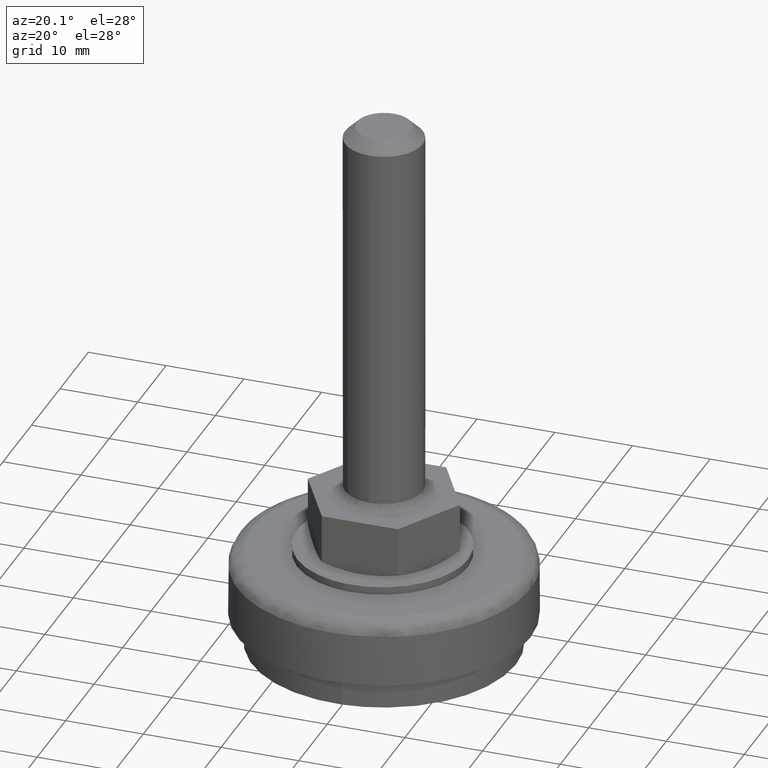
[diagram: clean part render]
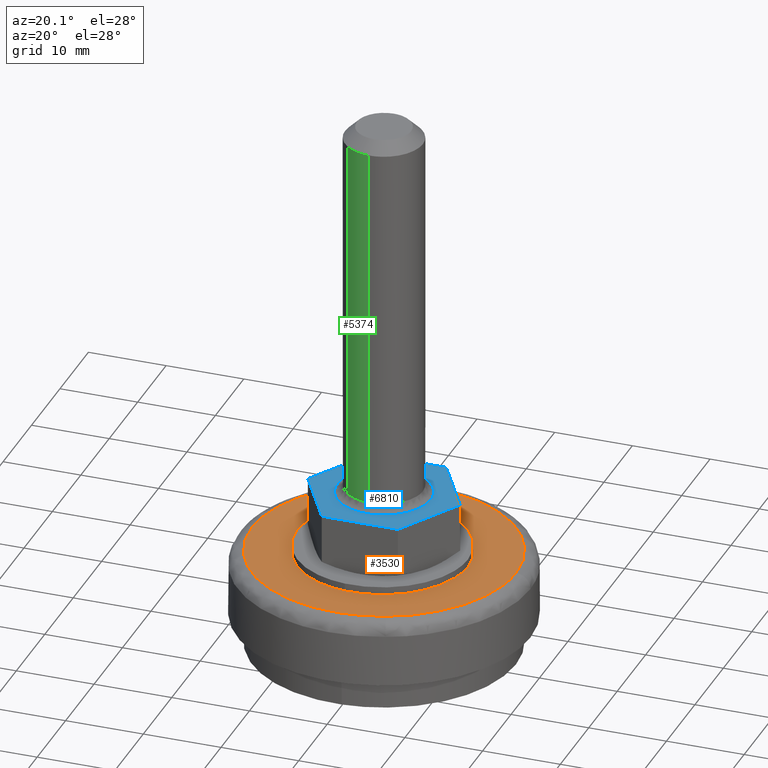
[diagram: same view with three faces highlighted in distinct colors, each labeled with its STEP entity id]
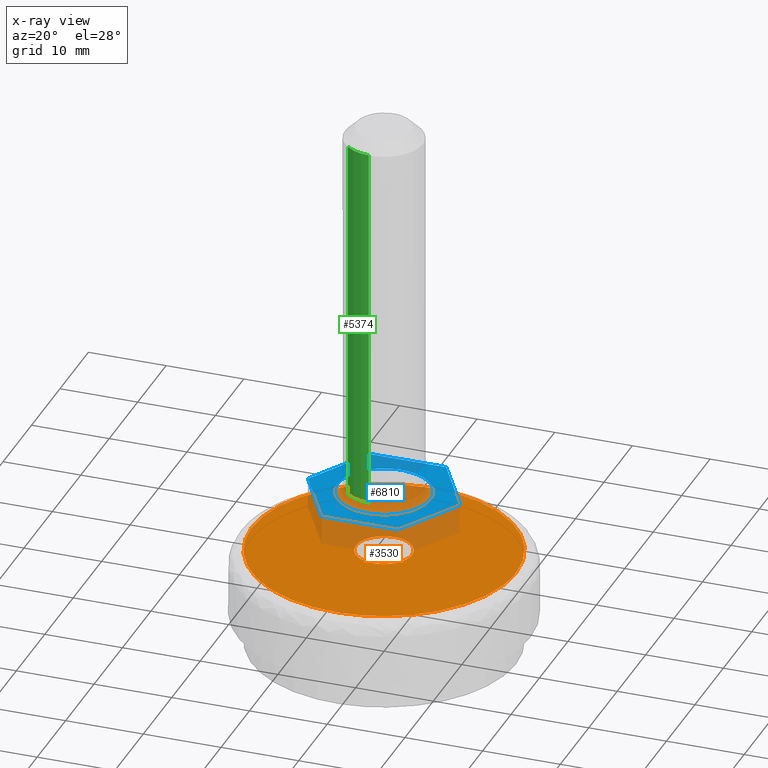
[diagram: x-ray of the same camera — body ghosted, the three highlighted faces saturated]
A machine part, auxiliary view with three faces highlighted in distinct colors.
The next image is the same camera in x-ray (body ghosted, the three faces saturated) — at least one of them is partly hidden behind the body in this view.
Their STEP definitions:

[orange] entity #3530 — the highlighted face is a freeform B-spline surface patch.
#2662=CARTESIAN_POINT('',(-0.424923244880155,-3.574834294895431,12.500000000000000));
#2663=VERTEX_POINT('',#2662);
#2669=CARTESIAN_POINT('',(3.600000000000000,0.0,12.500000000000000));
#2670=VERTEX_POINT('',#2669);
#2671=CARTESIAN_POINT('',(-0.424923244880155,-3.574834294895431,12.500000000000005));
#2672=CARTESIAN_POINT('',(-0.213206830863926,-3.600000000000000,12.499999999999996));
#2673=CARTESIAN_POINT('',(0.0,-3.600000000000000,12.500000000000000));
#2674=CARTESIAN_POINT('',(3.600000000000000,-3.600000000000000,12.499999999999998));
#2675=CARTESIAN_POINT('',(3.600000000000000,0.0,12.500000000000000));
#2683=(BOUNDED_CURVE()B_SPLINE_CURVE(2,(#2671,#2672,#2673,#2674,#2675),.UNSPECIFIED.,.F.,.U.)B_SPLINE_CURVE_WITH_KNOTS((3,2,3),(0.229562473504693,0.250000000000000,0.500000000000000),.UNSPECIFIED.)CURVE()GEOMETRIC_REPRESENTATION_ITEM()RATIONAL_B_SPLINE_CURVE((0.956026754166420,0.976055948320817,1.0,0.707106781186547,1.0))REPRESENTATION_ITEM(''));
#2684=EDGE_CURVE('',#2663,#2670,#2683,.T.);
#2686=CARTESIAN_POINT('',(0.219769012497546,3.593285624760839,12.500000000000000));
#2687=VERTEX_POINT('',#2686);
#2688=CARTESIAN_POINT('',(3.600000000000000,0.0,12.500000000000000));
#2689=CARTESIAN_POINT('',(3.600000000000000,3.386547251111519,12.500000000000000));
#2690=CARTESIAN_POINT('',(0.219769012497546,3.593285624760840,12.499999999999998));
#2698=(BOUNDED_CURVE()B_SPLINE_CURVE(2,(#2688,#2689,#2690),.UNSPECIFIED.,.F.,.U.)B_SPLINE_CURVE_WITH_KNOTS((3,3),(0.500000000000000,0.739333237383947),.UNSPECIFIED.)CURVE()GEOMETRIC_REPRESENTATION_ITEM()RATIONAL_B_SPLINE_CURVE((1.0,0.719603670934287,0.976072631355547))REPRESENTATION_ITEM(''));
#2699=EDGE_CURVE('',#2670,#2687,#2698,.T.);
#2773=CARTESIAN_POINT('',(-3.600000000000000,0.0,12.500000000000000));
#2774=VERTEX_POINT('',#2773);
#2775=CARTESIAN_POINT('',(0.219769012497546,3.593285624760840,12.499999999999998));
#2776=CARTESIAN_POINT('',(0.109987074928360,3.600000000000000,12.500000000000000));
#2777=CARTESIAN_POINT('',(0.0,3.600000000000000,12.500000000000000));
#2778=CARTESIAN_POINT('',(-3.600000000000000,3.600000000000000,12.499999999999998));
#2779=CARTESIAN_POINT('',(-3.600000000000000,0.0,12.500000000000000));
#2787=(BOUNDED_CURVE()B_SPLINE_CURVE(2,(#2775,#2776,#2777,#2778,#2779),.UNSPECIFIED.,.F.,.U.)B_SPLINE_CURVE_WITH_KNOTS((3,2,3),(0.739333237383947,0.750000000000000,1.0),.UNSPECIFIED.)CURVE()GEOMETRIC_REPRESENTATION_ITEM()RATIONAL_B_SPLINE_CURVE((0.976072631355547,0.987503110252261,1.0,0.707106781186547,1.0))REPRESENTATION_ITEM(''));
#2788=EDGE_CURVE('',#2687,#2774,#2787,.T.);
#2790=CARTESIAN_POINT('',(-3.600000000000000,0.0,12.500000000000000));
#2791=CARTESIAN_POINT('',(-3.600000000000000,-3.197428293216273,12.500000000000000));
#2792=CARTESIAN_POINT('',(-0.424923244880155,-3.574834294895431,12.500000000000002));
#2800=(BOUNDED_CURVE()B_SPLINE_CURVE(2,(#2790,#2791,#2792),.UNSPECIFIED.,.F.,.U.)B_SPLINE_CURVE_WITH_KNOTS((3,3),(0.0,0.229562473504693),.UNSPECIFIED.)CURVE()GEOMETRIC_REPRESENTATION_ITEM()RATIONAL_B_SPLINE_CURVE((1.0,0.731050832865730,0.956026754166421))REPRESENTATION_ITEM(''));
#2801=EDGE_CURVE('',#2774,#2663,#2800,.T.);
#3392=CARTESIAN_POINT('',(-17.0,0.0,12.500000000000000));
#3393=VERTEX_POINT('',#3392);
#3394=CARTESIAN_POINT('',(6.006133434828824,-15.903658739561820,12.500000000000000));
#3395=VERTEX_POINT('',#3394);
#3396=CARTESIAN_POINT('',(-17.0,0.0,12.500000000000000));
#3397=CARTESIAN_POINT('',(-17.000000000000004,-17.000000000000004,12.500000000000000));
#3398=CARTESIAN_POINT('',(0.0,-17.0,12.500000000000000));
#3399=CARTESIAN_POINT('',(3.103128110762968,-17.0,12.499999999999996));
#3400=CARTESIAN_POINT('',(6.006133434828824,-15.903658739561822,12.500000000000005));
#3408=(BOUNDED_CURVE()B_SPLINE_CURVE(2,(#3396,#3397,#3398,#3399,#3400),.UNSPECIFIED.,.F.,.U.)B_SPLINE_CURVE_WITH_KNOTS((3,2,3),(0.0,0.250000000000000,0.310000000002734),.UNSPECIFIED.)CURVE()GEOMETRIC_REPRESENTATION_ITEM()RATIONAL_B_SPLINE_CURVE((1.0,0.707106781186548,1.0,0.929705627481568,0.893152553773521))REPRESENTATION_ITEM(''));
#3409=EDGE_CURVE('',#3393,#3395,#3408,.T.);
#3411=CARTESIAN_POINT('',(17.000000000051909,8.852452E-016,12.500000000000000));
#3412=VERTEX_POINT('',#3411);
#3413=CARTESIAN_POINT('',(17.000000000051909,8.852452E-016,12.500000000000000));
#3414=CARTESIAN_POINT('',(17.000000000000004,17.000000000000004,12.500000000000000));
#3415=CARTESIAN_POINT('',(0.0,17.0,12.500000000000000));
#3416=CARTESIAN_POINT('',(-17.000000000000004,17.000000000000004,12.500000000000000));
#3417=CARTESIAN_POINT('',(-17.0,0.0,12.500000000000000));
#3425=(BOUNDED_CURVE()B_SPLINE_CURVE(2,(#3413,#3414,#3415,#3416,#3417),.UNSPECIFIED.,.F.,.U.)B_SPLINE_CURVE_WITH_KNOTS((3,2,3),(0.500000000000000,0.750000000000000,1.0),.UNSPECIFIED.)CURVE()GEOMETRIC_REPRESENTATION_ITEM()RATIONAL_B_SPLINE_CURVE((1.0,0.707106781186548,1.0,0.707106781186548,1.0))REPRESENTATION_ITEM(''));
#3426=EDGE_CURVE('',#3412,#3393,#3425,.T.);
#3478=CARTESIAN_POINT('',(6.006133434828824,-15.903658739561822,12.500000000000005));
#3479=CARTESIAN_POINT('',(17.0,-11.751744346221713,12.499999999999998));
#3480=CARTESIAN_POINT('',(17.000000000051909,8.852452E-016,12.500000000000000));
#3488=(BOUNDED_CURVE()B_SPLINE_CURVE(2,(#3478,#3479,#3480),.UNSPECIFIED.,.F.,.U.)B_SPLINE_CURVE_WITH_KNOTS((3,3),(0.310000000002734,0.500000000000000),.UNSPECIFIED.)CURVE()GEOMETRIC_REPRESENTATION_ITEM()RATIONAL_B_SPLINE_CURVE((0.893152553773521,0.777401153704979,1.0))REPRESENTATION_ITEM(''));
#3489=EDGE_CURVE('',#3395,#3412,#3488,.T.);
#3514=CARTESIAN_POINT('',(-18.698299934103989,18.698028670708680,12.500000000000000));
#3515=CARTESIAN_POINT('',(18.698300846106960,18.698028670708680,12.500000000000000));
#3516=CARTESIAN_POINT('',(-18.698299934103989,-18.692598883751138,12.500000000000000));
#3517=CARTESIAN_POINT('',(18.698300846106960,-18.692598883751138,12.500000000000000));
#3518=B_SPLINE_SURFACE_WITH_KNOTS('',1,1,((#3514,#3516),(#3515,#3517)),.UNSPECIFIED.,.F.,.F.,.U.,(2,2),(2,2),(0.0,37.396600780210953),(0.0,37.390627554459812),.UNSPECIFIED.);
#3519=ORIENTED_EDGE('',*,*,#3409,.T.);
#3520=ORIENTED_EDGE('',*,*,#3489,.T.);
#3521=ORIENTED_EDGE('',*,*,#3426,.T.);
#3522=EDGE_LOOP('',(#3519,#3520,#3521));
#3523=FACE_OUTER_BOUND('',#3522,.T.);
#3524=ORIENTED_EDGE('',*,*,#2699,.F.);
#3525=ORIENTED_EDGE('',*,*,#2684,.F.);
#3526=ORIENTED_EDGE('',*,*,#2801,.F.);
#3527=ORIENTED_EDGE('',*,*,#2788,.F.);
#3528=EDGE_LOOP('',(#3524,#3525,#3526,#3527));
#3529=FACE_BOUND('',#3528,.T.);
#3530=ADVANCED_FACE('',(#3523,#3529),#3518,.F.);

[blue] entity #6810 — the highlighted face is a freeform B-spline surface patch.
#5594=CARTESIAN_POINT('',(-6.0,0.0,20.500000000000000));
#5595=VERTEX_POINT('',#5594);
#5596=CARTESIAN_POINT('',(0.418399509664576,5.985394041401315,20.500000000000000));
#5597=VERTEX_POINT('',#5596);
#5598=CARTESIAN_POINT('',(-6.0,0.0,20.500000000000000));
#5599=CARTESIAN_POINT('',(-6.0,6.0,20.500000000000007));
#5600=CARTESIAN_POINT('',(0.0,6.0,20.500000000000000));
#5601=CARTESIAN_POINT('',(0.209454695574546,5.999999999999999,20.500000000000004));
#5602=CARTESIAN_POINT('',(0.418399509664576,5.985394041401315,20.500000000000004));
#5610=(BOUNDED_CURVE()B_SPLINE_CURVE(2,(#5598,#5599,#5600,#5601,#5602),.UNSPECIFIED.,.F.,.U.)B_SPLINE_CURVE_WITH_KNOTS((3,2,3),(0.500000000000000,0.750000000000000,0.762166313483547),.UNSPECIFIED.)CURVE()GEOMETRIC_REPRESENTATION_ITEM()RATIONAL_B_SPLINE_CURVE((1.0,0.707106781186548,1.0,0.985746277130841,0.972879876347553))REPRESENTATION_ITEM(''));
#5611=EDGE_CURVE('',#5595,#5597,#5610,.T.);
#5613=CARTESIAN_POINT('',(5.999525537188768,-0.075388903148755,20.500000000000679));
#5614=VERTEX_POINT('',#5613);
#5615=CARTESIAN_POINT('',(5.999525537188768,-0.075388903148755,20.500000000000675));
#5616=CARTESIAN_POINT('',(5.925078814951253,-5.999999999999999,20.500000000000000));
#5617=CARTESIAN_POINT('',(0.0,-6.0,20.500000000000000));
#5618=CARTESIAN_POINT('',(-6.0,-6.0,20.500000000000007));
#5619=CARTESIAN_POINT('',(-6.0,0.0,20.500000000000000));
#5627=(BOUNDED_CURVE()B_SPLINE_CURVE(2,(#5615,#5616,#5617,#5618,#5619),.UNSPECIFIED.,.F.,.U.)B_SPLINE_CURVE_WITH_KNOTS((3,2,3),(0.002215489332098,0.250000000000000,0.500000000000000),.UNSPECIFIED.)CURVE()GEOMETRIC_REPRESENTATION_ITEM()RATIONAL_B_SPLINE_CURVE((0.994854789906816,0.709702388393448,1.0,0.707106781186548,1.0))REPRESENTATION_ITEM(''));
#5628=EDGE_CURVE('',#5614,#5595,#5627,.T.);
#5680=CARTESIAN_POINT('',(6.0,0.0,20.500000000000000));
#5681=VERTEX_POINT('',#5680);
#5682=CARTESIAN_POINT('',(0.418399509664576,5.985394041401315,20.500000000000004));
#5683=CARTESIAN_POINT('',(6.0,5.595221082990483,20.500000000000000));
#5684=CARTESIAN_POINT('',(6.0,0.0,20.500000000000000));
#5692=(BOUNDED_CURVE()B_SPLINE_CURVE(2,(#5682,#5683,#5684),.UNSPECIFIED.,.F.,.U.)B_SPLINE_CURVE_WITH_KNOTS((3,3),(0.762166313483546,1.0),.UNSPECIFIED.)CURVE()GEOMETRIC_REPRESENTATION_ITEM()RATIONAL_B_SPLINE_CURVE((0.972879876347555,0.721360504055705,1.0))REPRESENTATION_ITEM(''));
#5693=EDGE_CURVE('',#5597,#5681,#5692,.T.);
#5699=CARTESIAN_POINT('',(6.0,0.0,20.500000000000000));
#5700=CARTESIAN_POINT('',(6.000000000000001,-0.037695944594419,20.500000000000004));
#5701=CARTESIAN_POINT('',(5.999525537188768,-0.075388903148755,20.500000000000675));
#5709=(BOUNDED_CURVE()B_SPLINE_CURVE(2,(#5699,#5700,#5701),.UNSPECIFIED.,.F.,.U.)B_SPLINE_CURVE_WITH_KNOTS((3,3),(0.0,0.002215489332098),.UNSPECIFIED.)CURVE()GEOMETRIC_REPRESENTATION_ITEM()RATIONAL_B_SPLINE_CURVE((1.0,0.997404392793099,0.994854789906816))REPRESENTATION_ITEM(''));
#5710=EDGE_CURVE('',#5681,#5614,#5709,.T.);
#6755=CARTESIAN_POINT('',(-10.779020146002170,-9.349149967050707,20.500000000000000));
#6756=CARTESIAN_POINT('',(10.779020496477489,-9.349149967050707,20.500000000000000));
#6757=CARTESIAN_POINT('',(-10.779020146002170,9.349150423026341,20.500000000000000));
#6758=CARTESIAN_POINT('',(10.779020496477489,9.349150423026341,20.500000000000000));
#6759=B_SPLINE_SURFACE_WITH_KNOTS('',1,1,((#6755,#6757),(#6756,#6758)),.UNSPECIFIED.,.F.,.F.,.U.,(2,2),(2,2),(0.0,21.558040642479661),(0.0,18.698300390077051),.UNSPECIFIED.);
#6760=CARTESIAN_POINT('',(4.892523000000001,8.500000000000101,20.500000000000000));
#6761=VERTEX_POINT('',#6760);
#6762=CARTESIAN_POINT('',(-4.892522000000000,8.500000000000101,20.500000000000000));
#6763=VERTEX_POINT('',#6762);
#6764=CARTESIAN_POINT('',(4.892523000000001,8.500000000000101,20.500000000000000));
#6765=CARTESIAN_POINT('',(-4.892522000000000,8.500000000000101,20.500000000000000));
#6766=QUASI_UNIFORM_CURVE('',1,(#6764,#6765),.UNSPECIFIED.,.F.,.U.);
#6767=EDGE_CURVE('',#6761,#6763,#6766,.T.);
#6768=ORIENTED_EDGE('',*,*,#6767,.T.);
#6769=CARTESIAN_POINT('',(-9.799999999999999,0.0,20.500000000000000));
#6770=VERTEX_POINT('',#6769);
#6771=CARTESIAN_POINT('',(-4.892522000000000,8.500000000000101,20.500000000000000));
#6772=CARTESIAN_POINT('',(-9.799999999999999,0.0,20.500000000000000));
#6773=QUASI_UNIFORM_CURVE('',1,(#6771,#6772),.UNSPECIFIED.,.F.,.U.);
#6774=EDGE_CURVE('',#6763,#6770,#6773,.T.);
#6775=ORIENTED_EDGE('',*,*,#6774,.T.);
#6776=CARTESIAN_POINT('',(-4.892522000000000,-8.500000000000000,20.500000000000000));
#6777=VERTEX_POINT('',#6776);
#6778=CARTESIAN_POINT('',(-9.799999999999999,0.0,20.500000000000000));
#6779=CARTESIAN_POINT('',(-4.892522000000000,-8.500000000000000,20.500000000000000));
#6780=QUASI_UNIFORM_CURVE('',1,(#6778,#6779),.UNSPECIFIED.,.F.,.U.);
#6781=EDGE_CURVE('',#6770,#6777,#6780,.T.);
#6782=ORIENTED_EDGE('',*,*,#6781,.T.);
#6783=CARTESIAN_POINT('',(4.892523000000001,-8.500000000000000,20.500000000000000));
#6784=VERTEX_POINT('',#6783);
#6785=CARTESIAN_POINT('',(-4.892522000000000,-8.500000000000000,20.500000000000000));
#6786=CARTESIAN_POINT('',(4.892523000000001,-8.500000000000000,20.500000000000000));
#6787=QUASI_UNIFORM_CURVE('',1,(#6785,#6786),.UNSPECIFIED.,.F.,.U.);
#6788=EDGE_CURVE('',#6777,#6784,#6787,.T.);
#6789=ORIENTED_EDGE('',*,*,#6788,.T.);
#6790=CARTESIAN_POINT('',(9.799999999999999,0.0,20.500000000000000));
#6791=VERTEX_POINT('',#6790);
#6792=CARTESIAN_POINT('',(4.892523000000001,-8.500000000000000,20.500000000000000));
#6793=CARTESIAN_POINT('',(9.799999999999999,0.0,20.500000000000000));
#6794=QUASI_UNIFORM_CURVE('',1,(#6792,#6793),.UNSPECIFIED.,.F.,.U.);
#6795=EDGE_CURVE('',#6784,#6791,#6794,.T.);
#6796=ORIENTED_EDGE('',*,*,#6795,.T.);
#6797=CARTESIAN_POINT('',(9.799999999999999,0.0,20.500000000000000));
#6798=CARTESIAN_POINT('',(4.892523000000001,8.500000000000101,20.500000000000000));
#6799=QUASI_UNIFORM_CURVE('',1,(#6797,#6798),.UNSPECIFIED.,.F.,.U.);
#6800=EDGE_CURVE('',#6791,#6761,#6799,.T.);
#6801=ORIENTED_EDGE('',*,*,#6800,.T.);
#6802=EDGE_LOOP('',(#6768,#6775,#6782,#6789,#6796,#6801));
#6803=FACE_OUTER_BOUND('',#6802,.T.);
#6804=ORIENTED_EDGE('',*,*,#5710,.T.);
#6805=ORIENTED_EDGE('',*,*,#5628,.T.);
#6806=ORIENTED_EDGE('',*,*,#5611,.T.);
#6807=ORIENTED_EDGE('',*,*,#5693,.T.);
#6808=EDGE_LOOP('',(#6804,#6805,#6806,#6807));
#6809=FACE_BOUND('',#6808,.T.);
#6810=ADVANCED_FACE('',(#6803,#6809),#6759,.T.);

[green] entity #5374 — the highlighted face is a freeform B-spline surface patch.
#5098=CARTESIAN_POINT('',(-3.267685414833657,-3.784472490279160,69.0));
#5099=VERTEX_POINT('',#5098);
#5113=CARTESIAN_POINT('',(-0.130880583114135,-4.998286733766520,69.0));
#5114=VERTEX_POINT('',#5113);
#5115=CARTESIAN_POINT('',(-0.130880583114135,-4.998286733766520,69.0));
#5116=CARTESIAN_POINT('',(-1.916042805696325,-4.951542102039449,69.0));
#5117=CARTESIAN_POINT('',(-3.267685414833657,-3.784472490279161,69.0));
#5125=(BOUNDED_CURVE()B_SPLINE_CURVE(2,(#5115,#5116,#5117),.UNSPECIFIED.,.F.,.U.)B_SPLINE_CURVE_WITH_KNOTS((3,3),(0.254603161143202,0.363957600839553),.UNSPECIFIED.)CURVE()GEOMETRIC_REPRESENTATION_ITEM()RATIONAL_B_SPLINE_CURVE((0.989412719056695,0.866013958070031,0.854696232557818))REPRESENTATION_ITEM(''));
#5126=EDGE_CURVE('',#5114,#5099,#5125,.T.);
#5241=CARTESIAN_POINT('',(-3.267684878484034,-3.784472953387294,21.500000000000011));
#5242=VERTEX_POINT('',#5241);
#5256=CARTESIAN_POINT('',(-3.267685414833657,-3.784472490279160,69.0));
#5257=CARTESIAN_POINT('',(-3.267684878484034,-3.784472953387294,21.500000000000011));
#5258=QUASI_UNIFORM_CURVE('',1,(#5256,#5257),.UNSPECIFIED.,.F.,.U.);
#5259=EDGE_CURVE('',#5099,#5242,#5258,.T.);
#5266=CARTESIAN_POINT('',(-0.130884744751212,-4.998286624793680,21.500000000000000));
#5267=VERTEX_POINT('',#5266);
#5268=CARTESIAN_POINT('',(-0.130880583114135,-4.998286733766520,69.0));
#5269=CARTESIAN_POINT('',(-0.130884744751212,-4.998286624793680,21.500000000000000));
#5270=QUASI_UNIFORM_CURVE('',1,(#5268,#5269),.UNSPECIFIED.,.F.,.U.);
#5271=EDGE_CURVE('',#5114,#5267,#5270,.T.);
#5338=CARTESIAN_POINT('',(-0.115349578404990,-4.998693427441185,70.187500000010971));
#5339=CARTESIAN_POINT('',(-0.123112156696287,-4.998490157174876,70.187500000011013));
#5340=CARTESIAN_POINT('',(-1.916045654282688,-4.951540541228309,70.187500000010985));
#5341=CARTESIAN_POINT('',(-3.274567112863800,-3.778530515101777,70.187500000010971));
#5342=CARTESIAN_POINT('',(-3.281448612798731,-3.772588710967970,70.187500000010985));
#5343=CARTESIAN_POINT('',(-0.115349578404990,-4.998693427441185,20.282812499549852));
#5344=CARTESIAN_POINT('',(-0.123112156696287,-4.998490157174876,20.282812499549866));
#5345=CARTESIAN_POINT('',(-1.916045654282688,-4.951540541228309,20.282812499549859));
#5346=CARTESIAN_POINT('',(-3.274567112863800,-3.778530515101777,20.282812499549863));
#5347=CARTESIAN_POINT('',(-3.281448612798731,-3.772588710967970,20.282812499549859));
#5355=(BOUNDED_SURFACE()B_SPLINE_SURFACE(2,1,((#5338,#5343),(#5339,#5344),(#5340,#5345),(#5341,#5346),(#5342,#5347)),.UNSPECIFIED.,.F.,.F.,.U.)B_SPLINE_SURFACE_WITH_KNOTS((3,1,1,3),(2,2),(0.0,0.018191929627107,3.655602315560091,3.673787476440584),(0.0,49.904687500461129),.UNSPECIFIED.)GEOMETRIC_REPRESENTATION_ITEM()RATIONAL_B_SPLINE_SURFACE(((1.001289075795257,1.001289075795257),(1.000644537897628,1.000644537897628),(0.871126983722081,0.871126983722081),(0.855584905998922,0.855584905998922),(0.855507590229112,0.855507590229112)))REPRESENTATION_ITEM('')SURFACE());
#5356=CARTESIAN_POINT('',(-3.267684878484034,-3.784472953387294,21.500000000000011));
#5357=CARTESIAN_POINT('',(-1.916044184169442,-4.951540577428752,21.500000000000000));
#5358=CARTESIAN_POINT('',(-0.130884744751212,-4.998286624793680,21.499999999999996));
#5366=(BOUNDED_CURVE()B_SPLINE_CURVE(2,(#5356,#5357,#5358),.UNSPECIFIED.,.F.,.U.)B_SPLINE_CURVE_WITH_KNOTS((3,3),(0.636042420573532,0.745396693116211),.UNSPECIFIED.)CURVE()GEOMETRIC_REPRESENTATION_ITEM()RATIONAL_B_SPLINE_CURVE((0.854696236990151,0.866013967149616,0.989412390140977))REPRESENTATION_ITEM(''));
#5367=EDGE_CURVE('',#5242,#5267,#5366,.T.);
#5368=ORIENTED_EDGE('',*,*,#5367,.T.);
#5369=ORIENTED_EDGE('',*,*,#5271,.F.);
#5370=ORIENTED_EDGE('',*,*,#5126,.T.);
#5371=ORIENTED_EDGE('',*,*,#5259,.T.);
#5372=EDGE_LOOP('',(#5368,#5369,#5370,#5371));
#5373=FACE_OUTER_BOUND('',#5372,.T.);
#5374=ADVANCED_FACE('',(#5373),#5355,.T.);